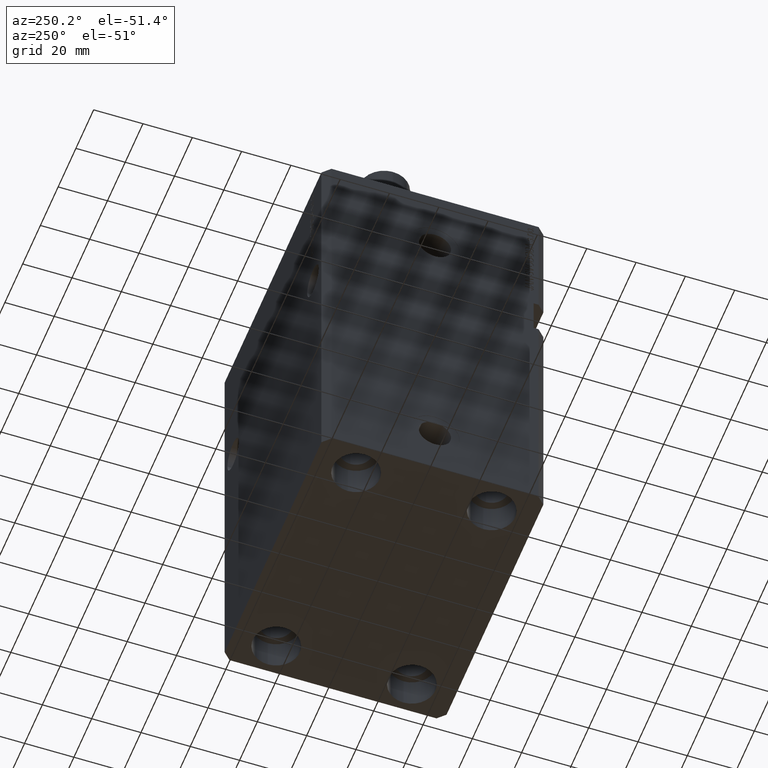
[diagram: clean part render]
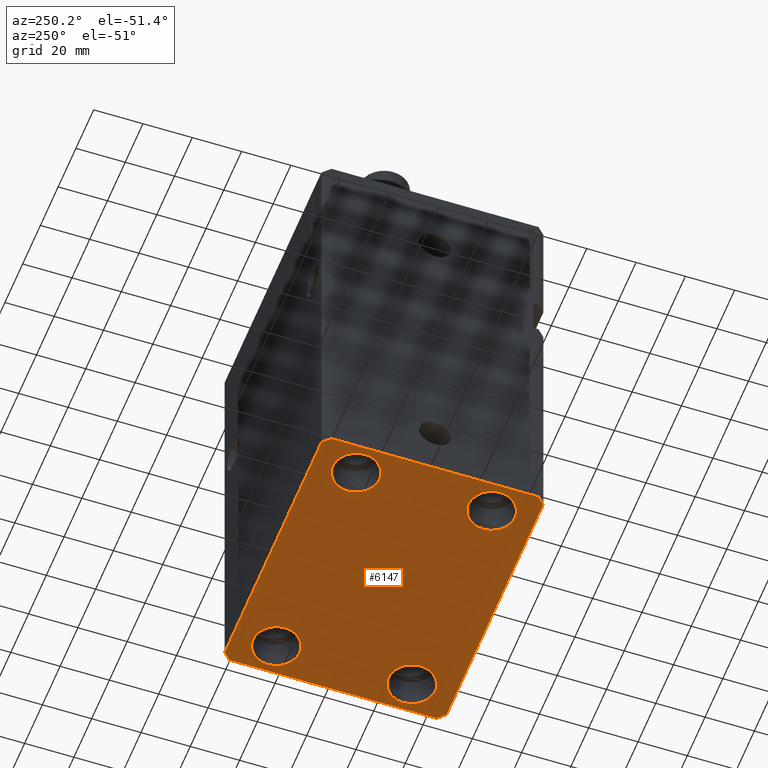
[diagram: same view with one face highlighted and labeled with its STEP entity id]
A machine part, auxiliary view. The second image highlights one B-rep face of the part: STEP entity #6147.
In plain terms, the highlighted planar face has unit normal (0, 0, 1).
Its self-contained STEP definition (entity closure, byte-faithful):
#285 = AXIS2_PLACEMENT_3D ( 'NONE', #5233, #9553, #24207 ) ;
#1073 = VERTEX_POINT ( 'NONE', #6079 ) ;
#1191 = DIRECTION ( 'NONE',  ( -0.000000000000000000, -0.000000000000000000, 1.000000000000000000 ) ) ;
#1494 = FACE_BOUND ( 'NONE', #45583, .T. ) ;
#1639 = DIRECTION ( 'NONE',  ( -0.000000000000000000, -0.000000000000000000, 1.000000000000000000 ) ) ;
#2303 = VERTEX_POINT ( 'NONE', #45696 ) ;
#2565 = LINE ( 'NONE', #32574, #25572 ) ;
#3110 = EDGE_CURVE ( 'NONE', #43708, #26924, #28633, .T. ) ;
#3717 = ORIENTED_EDGE ( 'NONE', *, *, #24262, .T. ) ;
#3856 = CARTESIAN_POINT ( 'NONE',  ( 57.50000000000000711, -41.99999999999998579, -165.0000000000000000 ) ) ;
#4854 = CARTESIAN_POINT ( 'NONE',  ( -54.50000000000000711, -45.00000000000000000, -165.0000000000000000 ) ) ;
#5013 = VECTOR ( 'NONE', #45238, 1000.000000000000000 ) ;
#5020 = ORIENTED_EDGE ( 'NONE', *, *, #13711, .F. ) ;
#5080 = AXIS2_PLACEMENT_3D ( 'NONE', #41730, #46040, #31383 ) ;
#5233 = CARTESIAN_POINT ( 'NONE',  ( 45.00000000000000000, -27.49999999999999645, -165.0000000000000000 ) ) ;
#5312 = ORIENTED_EDGE ( 'NONE', *, *, #3110, .T. ) ;
#6079 = CARTESIAN_POINT ( 'NONE',  ( -35.50000000000000000, -27.49999999999999645, -165.0000000000000000 ) ) ;
#6147 = ADVANCED_FACE ( 'NONE', ( #12096, #1494, #19524, #23833, #30568 ), #8478, .F. ) ;
#6361 = EDGE_CURVE ( 'NONE', #23653, #2303, #21650, .T. ) ;
#6388 = VERTEX_POINT ( 'NONE', #18757 ) ;
#6881 = AXIS2_PLACEMENT_3D ( 'NONE', #47102, #39679, #35580 ) ;
#7010 = ORIENTED_EDGE ( 'NONE', *, *, #27513, .F. ) ;
#7062 = VERTEX_POINT ( 'NONE', #34613 ) ;
#7896 = CARTESIAN_POINT ( 'NONE',  ( 35.50000000000000000, -27.49999999999999645, -165.0000000000000000 ) ) ;
#7927 = AXIS2_PLACEMENT_3D ( 'NONE', #31172, #45828, #42228 ) ;
#8316 = CIRCLE ( 'NONE', #6881, 9.500000000000001776 ) ;
#8478 = PLANE ( 'NONE',  #18660 ) ;
#8524 = ORIENTED_EDGE ( 'NONE', *, *, #10708, .T. ) ;
#8711 = CARTESIAN_POINT ( 'NONE',  ( 0.000000000000000000, 0.000000000000000000, -165.0000000000000000 ) ) ;
#8865 = CARTESIAN_POINT ( 'NONE',  ( -45.00000000000000000, -27.49999999999999645, -165.0000000000000000 ) ) ;
#8946 = LINE ( 'NONE', #4854, #9879 ) ;
#9327 = DIRECTION ( 'NONE',  ( 0.7071067811865491270, -0.7071067811865459074, 0.000000000000000000 ) ) ;
#9553 = DIRECTION ( 'NONE',  ( -0.000000000000000000, -0.000000000000000000, 1.000000000000000000 ) ) ;
#9795 = EDGE_CURVE ( 'NONE', #2303, #41951, #2565, .T. ) ;
#9879 = VECTOR ( 'NONE', #37763, 1000.000000000000000 ) ;
#9937 = EDGE_LOOP ( 'NONE', ( #38871, #11941 ) ) ;
#10378 = LINE ( 'NONE', #46148, #10623 ) ;
#10623 = VECTOR ( 'NONE', #25024, 1000.000000000000000 ) ;
#10708 = EDGE_CURVE ( 'NONE', #18617, #23249, #41720, .T. ) ;
#11941 = ORIENTED_EDGE ( 'NONE', *, *, #31023, .T. ) ;
#12035 = AXIS2_PLACEMENT_3D ( 'NONE', #14746, #13817, #46706 ) ;
#12096 = FACE_BOUND ( 'NONE', #9937, .T. ) ;
#12935 = LINE ( 'NONE', #27571, #27242 ) ;
#13711 = EDGE_CURVE ( 'NONE', #15692, #23956, #12935, .T. ) ;
#13817 = DIRECTION ( 'NONE',  ( -0.000000000000000000, -0.000000000000000000, 1.000000000000000000 ) ) ;
#13974 = CARTESIAN_POINT ( 'NONE',  ( -57.49999999999998579, 42.00000000000000711, -165.0000000000000000 ) ) ;
#14746 = CARTESIAN_POINT ( 'NONE',  ( 45.00000000000000000, -27.49999999999999645, -165.0000000000000000 ) ) ;
#15213 = CARTESIAN_POINT ( 'NONE',  ( -54.50000000000000711, -45.00000000000000000, -165.0000000000000000 ) ) ;
#15679 = ORIENTED_EDGE ( 'NONE', *, *, #46002, .T. ) ;
#15692 = VERTEX_POINT ( 'NONE', #38217 ) ;
#16478 = CARTESIAN_POINT ( 'NONE',  ( 54.50000000000000000, -27.49999999999999645, -165.0000000000000000 ) ) ;
#16750 = EDGE_CURVE ( 'NONE', #26823, #23653, #37463, .T. ) ;
#17515 = VERTEX_POINT ( 'NONE', #20509 ) ;
#18450 = CARTESIAN_POINT ( 'NONE',  ( -54.50000000000000000, -27.49999999999999645, -165.0000000000000000 ) ) ;
#18617 = VERTEX_POINT ( 'NONE', #7896 ) ;
#18660 = AXIS2_PLACEMENT_3D ( 'NONE', #8711, #27193, #26964 ) ;
#18757 = CARTESIAN_POINT ( 'NONE',  ( 35.50000000000000000, 27.50000000000001776, -165.0000000000000000 ) ) ;
#18795 = EDGE_LOOP ( 'NONE', ( #15679, #3717 ) ) ;
#18979 = CARTESIAN_POINT ( 'NONE',  ( 54.50000000000000711, -44.99999999999998579, -165.0000000000000000 ) ) ;
#19524 = FACE_BOUND ( 'NONE', #18795, .T. ) ;
#19875 = AXIS2_PLACEMENT_3D ( 'NONE', #8865, #1639, #30483 ) ;
#19933 = DIRECTION ( 'NONE',  ( 1.000000000000000000, 0.000000000000000000, 0.000000000000000000 ) ) ;
#20509 = CARTESIAN_POINT ( 'NONE',  ( -57.49999999999998579, 42.00000000000000711, -165.0000000000000000 ) ) ;
#20961 = CARTESIAN_POINT ( 'NONE',  ( -54.50000000000000000, 27.50000000000000355, -165.0000000000000000 ) ) ;
#21650 = LINE ( 'NONE', #3856, #30141 ) ;
#21672 = DIRECTION ( 'NONE',  ( 1.000000000000000000, 0.000000000000000000, 0.000000000000000000 ) ) ;
#22227 = CARTESIAN_POINT ( 'NONE',  ( 57.50000000000000711, -41.99999999999998579, -165.0000000000000000 ) ) ;
#22750 = ORIENTED_EDGE ( 'NONE', *, *, #6361, .F. ) ;
#23249 = VERTEX_POINT ( 'NONE', #16478 ) ;
#23653 = VERTEX_POINT ( 'NONE', #22227 ) ;
#23833 = FACE_BOUND ( 'NONE', #26168, .T. ) ;
#23956 = VERTEX_POINT ( 'NONE', #15213 ) ;
#24051 = ORIENTED_EDGE ( 'NONE', *, *, #24977, .F. ) ;
#24207 = DIRECTION ( 'NONE',  ( 1.000000000000000000, 0.000000000000000000, 0.000000000000000000 ) ) ;
#24262 = EDGE_CURVE ( 'NONE', #7062, #6388, #44322, .T. ) ;
#24898 = CARTESIAN_POINT ( 'NONE',  ( -35.50000000000000000, 27.50000000000000355, -165.0000000000000000 ) ) ;
#24977 = EDGE_CURVE ( 'NONE', #23956, #26823, #8946, .T. ) ;
#25019 = DIRECTION ( 'NONE',  ( -2.478176394252581141E-16, -1.000000000000000000, 0.000000000000000000 ) ) ;
#25024 = DIRECTION ( 'NONE',  ( -0.7071067811865483499, -0.7071067811865466846, 0.000000000000000000 ) ) ;
#25186 = EDGE_CURVE ( 'NONE', #45954, #17515, #10378, .T. ) ;
#25572 = VECTOR ( 'NONE', #35470, 999.9999999999998863 ) ;
#26168 = EDGE_LOOP ( 'NONE', ( #5312, #34604 ) ) ;
#26699 = AXIS2_PLACEMENT_3D ( 'NONE', #38177, #1191, #19933 ) ;
#26772 = VERTEX_POINT ( 'NONE', #18450 ) ;
#26823 = VERTEX_POINT ( 'NONE', #33801 ) ;
#26924 = VERTEX_POINT ( 'NONE', #24898 ) ;
#26964 = DIRECTION ( 'NONE',  ( 1.000000000000000000, 0.000000000000000000, -0.000000000000000000 ) ) ;
#27193 = DIRECTION ( 'NONE',  ( 0.000000000000000000, 0.000000000000000000, 1.000000000000000000 ) ) ;
#27242 = VECTOR ( 'NONE', #9327, 1000.000000000000114 ) ;
#27513 = EDGE_CURVE ( 'NONE', #17515, #15692, #28377, .T. ) ;
#27545 = VECTOR ( 'NONE', #25019, 1000.000000000000000 ) ;
#27571 = CARTESIAN_POINT ( 'NONE',  ( -57.50000000000000711, -42.00000000000000711, -165.0000000000000000 ) ) ;
#27954 = VECTOR ( 'NONE', #30949, 1000.000000000000000 ) ;
#28034 = EDGE_LOOP ( 'NONE', ( #40745, #40771, #22750, #40606, #24051, #5020, #7010, #41427 ) ) ;
#28134 = CIRCLE ( 'NONE', #12035, 9.500000000000001776 ) ;
#28377 = LINE ( 'NONE', #13974, #27545 ) ;
#28380 = EDGE_CURVE ( 'NONE', #26772, #1073, #8316, .T. ) ;
#28633 = CIRCLE ( 'NONE', #7927, 9.500000000000001776 ) ;
#29334 = DIRECTION ( 'NONE',  ( -0.000000000000000000, -0.000000000000000000, 1.000000000000000000 ) ) ;
#30022 = CARTESIAN_POINT ( 'NONE',  ( 54.50000000000058975, 45.00000000000002842, -165.0000000000000000 ) ) ;
#30141 = VECTOR ( 'NONE', #44457, 1000.000000000000000 ) ;
#30483 = DIRECTION ( 'NONE',  ( 1.000000000000000000, 0.000000000000000000, 0.000000000000000000 ) ) ;
#30568 = FACE_OUTER_BOUND ( 'NONE', #28034, .T. ) ;
#30590 = CARTESIAN_POINT ( 'NONE',  ( 54.50000000000058975, 45.00000000000002842, -165.0000000000000000 ) ) ;
#30949 = DIRECTION ( 'NONE',  ( 0.7071067811865483499, 0.7071067811865466846, 0.000000000000000000 ) ) ;
#31023 = EDGE_CURVE ( 'NONE', #1073, #26772, #47496, .T. ) ;
#31172 = CARTESIAN_POINT ( 'NONE',  ( -45.00000000000000000, 27.50000000000000355, -165.0000000000000000 ) ) ;
#31383 = DIRECTION ( 'NONE',  ( 1.000000000000000000, 0.000000000000000000, 0.000000000000000000 ) ) ;
#32574 = CARTESIAN_POINT ( 'NONE',  ( 57.50000000000055422, 41.99999999999997868, -165.0000000000000000 ) ) ;
#33801 = CARTESIAN_POINT ( 'NONE',  ( 54.50000000000000711, -44.99999999999998579, -165.0000000000000000 ) ) ;
#33945 = LINE ( 'NONE', #30590, #5013 ) ;
#34604 = ORIENTED_EDGE ( 'NONE', *, *, #38670, .T. ) ;
#34613 = CARTESIAN_POINT ( 'NONE',  ( 54.50000000000000000, 27.50000000000001776, -165.0000000000000000 ) ) ;
#35470 = DIRECTION ( 'NONE',  ( -0.7071067811865376918, 0.7071067811865574537, 0.000000000000000000 ) ) ;
#35580 = DIRECTION ( 'NONE',  ( 1.000000000000000000, 0.000000000000000000, 0.000000000000000000 ) ) ;
#37307 = CIRCLE ( 'NONE', #5080, 9.500000000000001776 ) ;
#37463 = LINE ( 'NONE', #18979, #27954 ) ;
#37650 = CARTESIAN_POINT ( 'NONE',  ( -54.49999999999999289, 45.00000000000000000, -165.0000000000000000 ) ) ;
#37763 = DIRECTION ( 'NONE',  ( 1.000000000000000000, 1.273191542001326317E-16, 0.000000000000000000 ) ) ;
#38177 = CARTESIAN_POINT ( 'NONE',  ( 45.00000000000000000, 27.50000000000001776, -165.0000000000000000 ) ) ;
#38217 = CARTESIAN_POINT ( 'NONE',  ( -57.50000000000000711, -42.00000000000000711, -165.0000000000000000 ) ) ;
#38513 = ORIENTED_EDGE ( 'NONE', *, *, #42474, .T. ) ;
#38670 = EDGE_CURVE ( 'NONE', #26924, #43708, #44898, .T. ) ;
#38871 = ORIENTED_EDGE ( 'NONE', *, *, #28380, .T. ) ;
#39524 = AXIS2_PLACEMENT_3D ( 'NONE', #40161, #29334, #21672 ) ;
#39679 = DIRECTION ( 'NONE',  ( -0.000000000000000000, -0.000000000000000000, 1.000000000000000000 ) ) ;
#40161 = CARTESIAN_POINT ( 'NONE',  ( -45.00000000000000000, 27.50000000000000355, -165.0000000000000000 ) ) ;
#40606 = ORIENTED_EDGE ( 'NONE', *, *, #16750, .F. ) ;
#40745 = ORIENTED_EDGE ( 'NONE', *, *, #44258, .F. ) ;
#40771 = ORIENTED_EDGE ( 'NONE', *, *, #9795, .F. ) ;
#41427 = ORIENTED_EDGE ( 'NONE', *, *, #25186, .F. ) ;
#41720 = CIRCLE ( 'NONE', #285, 9.500000000000001776 ) ;
#41730 = CARTESIAN_POINT ( 'NONE',  ( 45.00000000000000000, 27.50000000000001776, -165.0000000000000000 ) ) ;
#41951 = VERTEX_POINT ( 'NONE', #30022 ) ;
#42228 = DIRECTION ( 'NONE',  ( 1.000000000000000000, 0.000000000000000000, 0.000000000000000000 ) ) ;
#42474 = EDGE_CURVE ( 'NONE', #23249, #18617, #28134, .T. ) ;
#43708 = VERTEX_POINT ( 'NONE', #20961 ) ;
#44258 = EDGE_CURVE ( 'NONE', #41951, #45954, #33945, .T. ) ;
#44322 = CIRCLE ( 'NONE', #26699, 9.500000000000001776 ) ;
#44457 = DIRECTION ( 'NONE',  ( 6.443258625056715108E-15, 1.000000000000000000, 0.000000000000000000 ) ) ;
#44898 = CIRCLE ( 'NONE', #39524, 9.500000000000001776 ) ;
#45238 = DIRECTION ( 'NONE',  ( -1.000000000000000000, -2.546383084002639322E-16, 0.000000000000000000 ) ) ;
#45583 = EDGE_LOOP ( 'NONE', ( #8524, #38513 ) ) ;
#45696 = CARTESIAN_POINT ( 'NONE',  ( 57.50000000000055422, 41.99999999999997868, -165.0000000000000000 ) ) ;
#45828 = DIRECTION ( 'NONE',  ( -0.000000000000000000, -0.000000000000000000, 1.000000000000000000 ) ) ;
#45954 = VERTEX_POINT ( 'NONE', #37650 ) ;
#46002 = EDGE_CURVE ( 'NONE', #6388, #7062, #37307, .T. ) ;
#46040 = DIRECTION ( 'NONE',  ( -0.000000000000000000, -0.000000000000000000, 1.000000000000000000 ) ) ;
#46148 = CARTESIAN_POINT ( 'NONE',  ( -54.49999999999999289, 45.00000000000000000, -165.0000000000000000 ) ) ;
#46706 = DIRECTION ( 'NONE',  ( 1.000000000000000000, 0.000000000000000000, 0.000000000000000000 ) ) ;
#47102 = CARTESIAN_POINT ( 'NONE',  ( -45.00000000000000000, -27.49999999999999645, -165.0000000000000000 ) ) ;
#47496 = CIRCLE ( 'NONE', #19875, 9.500000000000001776 ) ;